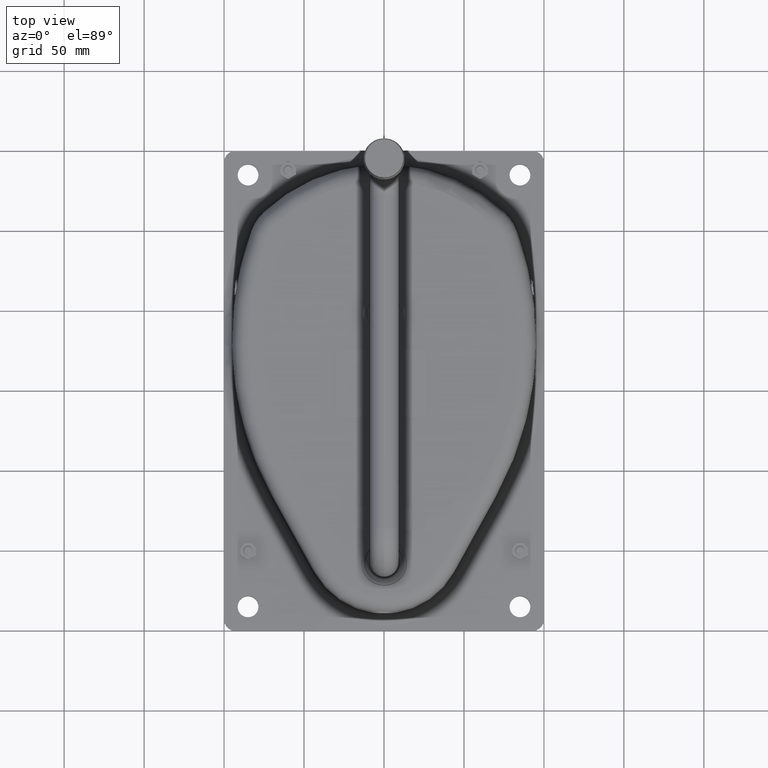
[diagram: clean part render]
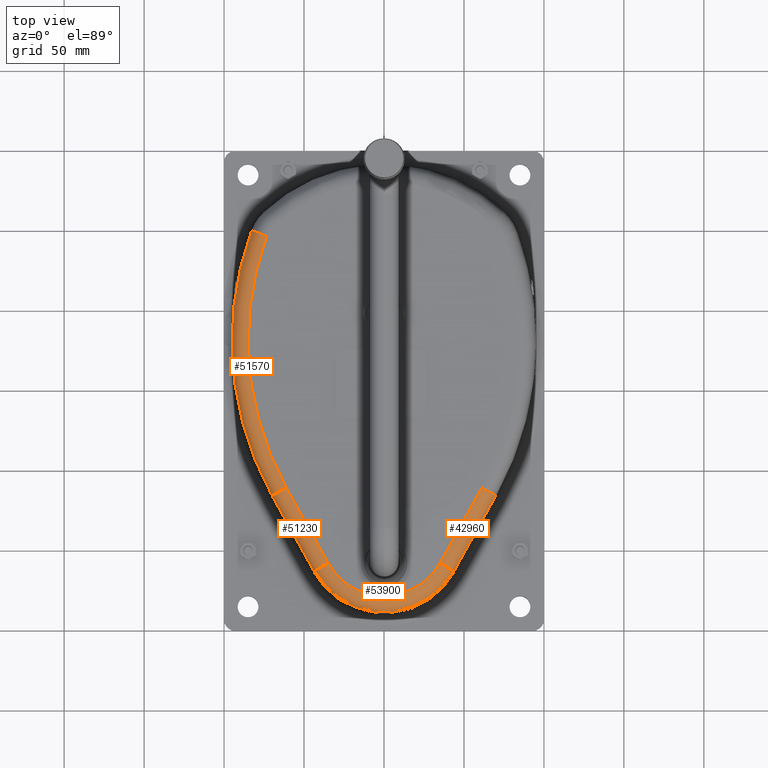
[diagram: same view with one multi-face feature highlighted, each face labeled with its STEP entity id]
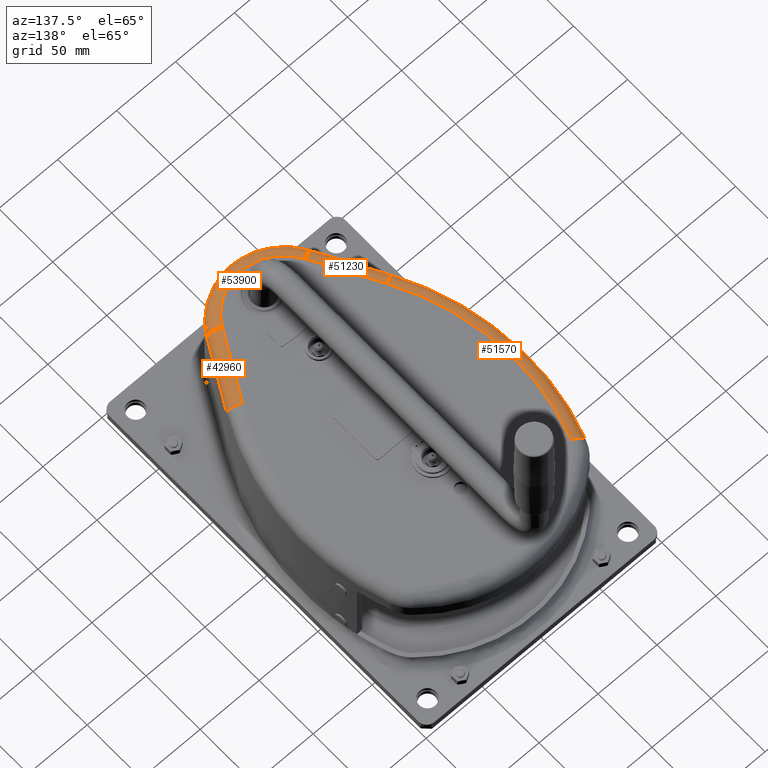
[diagram: same view with one multi-face feature highlighted, each face labeled with its STEP entity id]
A machine part, top view. The highlighted faces form ONE feature: a constant-radius fillet chain: 4 tangent blend faces with common blend radius 10 mm. The faces share edges in the B-rep.
A second angle (auxiliary view) of the same feature is appended — it is thin or edge-on in the first view.
Their STEP definitions:
[1] entity #51230 (Cylinder):
#47050=CARTESIAN_POINT('',(-40.9159415704462,161.969343752201,
-2.8421709430404E-14));
#47060=VERTEX_POINT('',#47050);
#50660=CARTESIAN_POINT('',(-67.946986108562,115.125746204848,
-2.8421709430404E-14));
#50670=VERTEX_POINT('',#50660);
#50700=CARTESIAN_POINT('',(-17.7089792885442,202.185976886639,
-2.8421709430404E-14));
#50710=DIRECTION('',(-0.499804190315523,-0.866138425047085,0.));
#50720=VECTOR('',#50710,1.);
#50730=LINE('',#50700,#50720);
#50740=EDGE_CURVE('',#47060,#50670,#50730,.T.);
#50910=CARTESIAN_POINT('',(-9.04759503807331,197.187934983483,
-2.8421709430404E-14));
#50920=DIRECTION('',(-0.499804190315523,-0.866138425047085,0.));
#50930=DIRECTION('',(0.866138425047085,-0.499804190315523,0.));
#50940=AXIS2_PLACEMENT_3D('',#50910,#50920,#50930);
#50950=CYLINDRICAL_SURFACE('',#50940,10.);
#50960=CARTESIAN_POINT('',(-32.2545573199754,156.971301849046,
-2.8421709430404E-14));
#50970=DIRECTION('',(0.499804190315523,0.866138425047085,0.));
#50980=DIRECTION('',(-0.866138425047085,0.499804190315523,-0.));
#50990=AXIS2_PLACEMENT_3D('',#50960,#50970,#50980);
#51000=CIRCLE('',#50990,10.);
#51010=CARTESIAN_POINT('',(-32.2545573199754,156.971301849046,-10.));
#51020=VERTEX_POINT('',#51010);
#51030=EDGE_CURVE('',#51020,#47060,#51000,.T.);
#51040=ORIENTED_EDGE('',*,*,#51030,.F.);
#51050=ORIENTED_EDGE('',*,*,#50740,.F.);
#51060=CARTESIAN_POINT('',(-59.2856018580911,110.127704301693,
-2.8421709430404E-14));
#51070=DIRECTION('',(0.499804190315522,0.866138425047086,0.));
#51080=DIRECTION('',(-0.866138425047086,0.499804190315522,-0.));
#51090=AXIS2_PLACEMENT_3D('',#51060,#51070,#51080);
#51100=CIRCLE('',#51090,10.);
#51110=CARTESIAN_POINT('',(-59.2856018580911,110.127704301693,-10.));
#51120=VERTEX_POINT('',#51110);
#51130=EDGE_CURVE('',#51120,#50670,#51100,.T.);
#51140=ORIENTED_EDGE('',*,*,#51130,.T.);
#51150=CARTESIAN_POINT('',(-9.04759503807331,197.187934983483,-10.));
#51160=DIRECTION('',(-0.499804190315523,-0.866138425047085,0.));
#51170=VECTOR('',#51160,1.);
#51180=LINE('',#51150,#51170);
#51190=EDGE_CURVE('',#51020,#51120,#51180,.T.);
#51200=ORIENTED_EDGE('',*,*,#51190,.T.);
#51210=EDGE_LOOP('',(#51200,#51140,#51050,#51040));
#51220=FACE_OUTER_BOUND('',#51210,.T.);
#51230=ADVANCED_FACE('',(#51220),#50950,.T.);
[2] entity #51570 (Torus):
#50660=CARTESIAN_POINT('',(-67.946986108562,115.125746204848,
-2.8421709430404E-14));
#50670=VERTEX_POINT('',#50660);
#51060=CARTESIAN_POINT('',(-59.2856018580911,110.127704301693,
-2.8421709430404E-14));
#51070=DIRECTION('',(0.499804190315522,0.866138425047086,0.));
#51080=DIRECTION('',(-0.866138425047086,0.499804190315522,-0.));
#51090=AXIS2_PLACEMENT_3D('',#51060,#51070,#51080);
#51100=CIRCLE('',#51090,10.);
#51110=CARTESIAN_POINT('',(-59.2856018580911,110.127704301693,-10.));
#51120=VERTEX_POINT('',#51110);
#51130=EDGE_CURVE('',#51120,#50670,#51100,.T.);
#51240=CARTESIAN_POINT('',(105.280698900855,15.1649081417436,
-2.8421709430404E-14));
#51250=DIRECTION('',(0.,-0.,-1.));
#51260=DIRECTION('',(0.999847695156391,-0.0174524064372835,0.));
#51270=AXIS2_PLACEMENT_3D('',#51240,#51250,#51260);
#51280=TOROIDAL_SURFACE('',#51270,190.,10.);
#51290=ORIENTED_EDGE('',*,*,#51130,.F.);
#51300=CARTESIAN_POINT('',(105.280698900855,15.1649081417436,
-2.8421709430404E-14));
#51310=DIRECTION('',(0.,-0.,-1.));
#51320=DIRECTION('',(0.999847695156391,-0.0174524064372835,0.));
#51330=AXIS2_PLACEMENT_3D('',#51300,#51310,#51320);
#51340=CIRCLE('',#51330,200.);
#51350=CARTESIAN_POINT('',(-83.705537333103,-50.2889115643866,
-2.8421709430404E-14));
#51360=VERTEX_POINT('',#51350);
#51370=EDGE_CURVE('',#51360,#50670,#51340,.T.);
#51380=ORIENTED_EDGE('',*,*,#51370,.T.);
#51390=CARTESIAN_POINT('',(-74.2562255214051,-47.0162205790801,
-2.8421709430404E-14));
#51400=DIRECTION('',(-0.327269098530651,0.944931181169791,-0.));
#51410=DIRECTION('',(-0.944931181169791,-0.327269098530651,0.));
#51420=AXIS2_PLACEMENT_3D('',#51390,#51400,#51410);
#51430=CIRCLE('',#51420,10.);
#51440=CARTESIAN_POINT('',(-74.2562255214051,-47.0162205790802,-10.));
#51450=VERTEX_POINT('',#51440);
#51460=EDGE_CURVE('',#51450,#51360,#51430,.T.);
#51470=ORIENTED_EDGE('',*,*,#51460,.T.);
#51480=CARTESIAN_POINT('',(105.280698900855,15.1649081417436,-10.));
#51490=DIRECTION('',(0.,-0.,-1.));
#51500=DIRECTION('',(0.999847695156391,-0.0174524064372835,0.));
#51510=AXIS2_PLACEMENT_3D('',#51480,#51490,#51500);
#51520=CIRCLE('',#51510,190.);
#51530=EDGE_CURVE('',#51450,#51120,#51520,.T.);
#51540=ORIENTED_EDGE('',*,*,#51530,.F.);
#51550=EDGE_LOOP('',(#51540,#51470,#51380,#51290));
#51560=FACE_OUTER_BOUND('',#51550,.T.);
#51570=ADVANCED_FACE('',(#51560),#51280,.T.);
[3] entity #53900 (Torus):
#42750=CARTESIAN_POINT('',(46.5436652625398,160.442730636335,
-2.8421709430404E-14));
#42760=VERTEX_POINT('',#42750);
#42790=CARTESIAN_POINT('',(37.7131281464135,155.750011356353,
-2.8421709430404E-14));
#42800=DIRECTION('',(0.4692719279982,-0.883053711612636,0.));
#42810=DIRECTION('',(0.883053711612636,0.4692719279982,0.));
#42820=AXIS2_PLACEMENT_3D('',#42790,#42800,#42810);
#42830=CIRCLE('',#42820,10.);
#42840=CARTESIAN_POINT('',(37.7131281464134,155.750011356353,-10.));
#42850=VERTEX_POINT('',#42840);
#42860=EDGE_CURVE('',#42850,#42760,#42830,.T.);
#47050=CARTESIAN_POINT('',(-40.9159415704462,161.969343752201,
-2.8421709430404E-14));
#47060=VERTEX_POINT('',#47050);
#47090=CARTESIAN_POINT('',(2.39097968190802,136.979134236425,
-2.8421709430404E-14));
#47100=DIRECTION('',(0.,-0.,-1.));
#47110=DIRECTION('',(0.999847695156391,-0.0174524064372835,0.));
#47120=AXIS2_PLACEMENT_3D('',#47090,#47100,#47110);
#47130=CIRCLE('',#47120,50.);
#47140=CARTESIAN_POINT('',(-2.9872800438964,186.689035889132,0.));
#47150=VERTEX_POINT('',#47140);
#47160=EDGE_CURVE('',#47060,#47150,#47130,.T.);
#47180=CARTESIAN_POINT('',(3.43812406814503,196.969995945809,
4.99999999999997));
#47190=DIRECTION('',(0.0174524064372835,0.999847695156391,0.));
#47200=DIRECTION('',(0.999847695156391,-0.0174524064372835,0.));
#47210=AXIS2_PLACEMENT_3D('',#47180,#47190,#47200);
#47220=CYLINDRICAL_SURFACE('',#47210,8.);
#50430=CARTESIAN_POINT('',(9.50081366601347,186.471055402596,
-7.105427357601E-14));
#50440=VERTEX_POINT('',#50430);
#50470=EDGE_CURVE('',#50440,#42760,#47130,.T.);
#50960=CARTESIAN_POINT('',(-32.2545573199754,156.971301849046,
-2.8421709430404E-14));
#50970=DIRECTION('',(0.499804190315523,0.866138425047085,0.));
#50980=DIRECTION('',(-0.866138425047085,0.499804190315523,-0.));
#50990=AXIS2_PLACEMENT_3D('',#50960,#50970,#50980);
#51000=CIRCLE('',#50990,10.);
#51010=CARTESIAN_POINT('',(-32.2545573199754,156.971301849046,-10.));
#51020=VERTEX_POINT('',#51010);
#51030=EDGE_CURVE('',#51020,#47060,#51000,.T.);
#52260=CARTESIAN_POINT('',(2.39097968190802,136.979134236425,
-2.8421709430404E-14));
#52270=DIRECTION('',(0.,-0.,-1.));
#52280=DIRECTION('',(0.999847695156391,-0.0174524064372838,0.));
#52290=AXIS2_PLACEMENT_3D('',#52260,#52270,#52280);
#52300=TOROIDAL_SURFACE('',#52290,40.,10.);
#52310=ORIENTED_EDGE('',*,*,#42860,.F.);
#52320=ORIENTED_EDGE('',*,*,#50470,.T.);
#52330=CARTESIAN_POINT('',(9.50081366601326,186.471055402618,
2.68595916200358E-12));
#52340=CARTESIAN_POINT('',(9.31527125875053,186.497709767241,
-0.232288110040329));
#52350=CARTESIAN_POINT('',(9.11639467594897,186.517036368844,
-0.454500245974532));
#52360=CARTESIAN_POINT('',(8.90504556973544,186.530633682329,
-0.665414668867476));
#52370=CARTESIAN_POINT('',(8.85223369043336,186.534031376748,
-0.718117929574125));
#52380=CARTESIAN_POINT('',(8.7986704925271,186.537069587956,
-0.770088186339204));
#52390=CARTESIAN_POINT('',(8.74439269806478,186.539773747498,
-0.82129034419344));
#52400=CARTESIAN_POINT('',(8.6901148918004,186.542477907627,
-0.872492513180976));
#52410=CARTESIAN_POINT('',(8.6351225965098,186.544848025036,
-0.922926486848421));
#52420=CARTESIAN_POINT('',(8.57945440851897,186.546910346571,
-0.972559791437436));
#52430=CARTESIAN_POINT('',(8.46815189299168,186.551033735222,
-1.07179621090917));
#52440=CARTESIAN_POINT('',(8.35405707465413,186.553931460233,
-1.16791849399033));
#52450=CARTESIAN_POINT('',(8.2371545426476,186.555814242713,
-1.26091695950417));
#52460=CARTESIAN_POINT('',(8.12027528994461,186.557696650265,
-1.35389690583394));
#52470=CARTESIAN_POINT('',(8.00068774760171,186.558561391436,
-1.4436671925601));
#52480=CARTESIAN_POINT('',(7.87868186168979,186.558617040583,
-1.53000392371791));
#52490=CARTESIAN_POINT('',(7.75667595460816,186.558672689739,
-1.61634066985633));
#52500=CARTESIAN_POINT('',(7.63225462580299,186.557919651364,
-1.69924181682729));
#52510=CARTESIAN_POINT('',(7.50573147707539,186.556568627291,
-1.7785187675577));
#52520=CARTESIAN_POINT('',(7.44247001456257,186.555893116448,
-1.81815717283925));
#52530=CARTESIAN_POINT('',(7.37868369421682,186.555068106401,
-1.85688993599935));
#52540=CARTESIAN_POINT('',(7.31441330033621,186.554119633326,
-1.89469711068627));
#52550=CARTESIAN_POINT('',(7.25014821918994,186.553171238654,
-1.93250116014768));
#52560=CARTESIAN_POINT('',(7.18530336906222,186.552097967863,
-1.96943616363618));
#52570=CARTESIAN_POINT('',(7.11991200869281,186.550924424903,
-2.00547845354763));
#52580=CARTESIAN_POINT('',(6.98912939788218,186.548577340957,
-2.0775629727805));
#52590=CARTESIAN_POINT('',(6.85616219208218,186.545829655434,
-2.1460731006512));
#52600=CARTESIAN_POINT('',(6.72130757807275,186.542875124311,
-2.21083341248851));
#52610=CARTESIAN_POINT('',(6.58645313296232,186.539920596889,
-2.27559364321661));
#52620=CARTESIAN_POINT('',(6.4497140368013,186.536759692943,
-2.33660264329383));
#52630=CARTESIAN_POINT('',(6.31140901736116,186.533576623467,
-2.39371682775522));
#52640=CARTESIAN_POINT('',(6.17310390484854,186.530393551848,
-2.45083105065164));
#52650=CARTESIAN_POINT('',(6.03323580875509,186.527188777341,
-2.50404927598617));
#52660=CARTESIAN_POINT('',(5.89213589528688,186.524130688413,
-2.55326429917497));
#52670=CARTESIAN_POINT('',(5.75101870514418,186.521072225045,
-2.60248534839111));
#52680=CARTESIAN_POINT('',(5.60874697836468,186.518162268904,
-2.64767970373908));
#52690=CARTESIAN_POINT('',(5.46544132722984,186.515543701851,
-2.68884058531693));
#52700=CARTESIAN_POINT('',(5.39375860993525,186.514233872125,
-2.70942961173965));
#52710=CARTESIAN_POINT('',(5.32176010488007,186.512995593662,
-2.72902532178064));
#52720=CARTESIAN_POINT('',(5.24948750712257,186.511845554314,
-2.7476144284707));
#52730=CARTESIAN_POINT('',(5.17721491812399,186.510695515106,
-2.7662035329079));
#52740=CARTESIAN_POINT('',(5.10466833863981,186.509633727489,
-2.78378600540758));
#52750=CARTESIAN_POINT('',(5.03189034139669,186.50867531306,
-2.80035083918201));
#52760=CARTESIAN_POINT('',(4.95911234305919,186.507716898616,
-2.81691567320553));
#52770=CARTESIAN_POINT('',(4.88610303290007,186.506861868309,
-2.83246284418954));
#52780=CARTESIAN_POINT('',(4.81290552185006,186.506123619003,
-2.84698372840804));
#52790=CARTESIAN_POINT('',(4.73970799933494,186.505385369581,
-2.86150461490099));
#52800=CARTESIAN_POINT('',(4.66632238478075,186.504763910227,
-2.87499919501703));
#52810=CARTESIAN_POINT('',(4.59279196472706,186.504270777409,
-2.88746128932925));
#52820=CARTESIAN_POINT('',(4.51927067824927,186.503777705845,
-2.89992183566331));
#52830=CARTESIAN_POINT('',(4.44556865001307,186.5034126524,
-2.91135653328914));
#52840=CARTESIAN_POINT('',(4.37169909917992,186.503185606531,
-2.92176193461657));
#52850=CARTESIAN_POINT('',(4.29783204530242,186.502958568338,
-2.93216698421822));
#52860=CARTESIAN_POINT('',(4.22380827242451,186.502869605572,
-2.94154099564171));
#52870=CARTESIAN_POINT('',(4.1496718841049,186.502926906827,
-2.94987788524321));
#52880=CARTESIAN_POINT('',(4.00137840796976,186.503041525336,
-2.96655399217511));
#52890=CARTESIAN_POINT('',(3.85272843597479,186.503742694648,
-2.97907267078765));
#52900=CARTESIAN_POINT('',(3.7037938183842,186.505073150665,
-2.98743114912054));
#52910=CARTESIAN_POINT('',(3.62932409368158,186.505738400255,
-2.99161052387204));
#52920=CARTESIAN_POINT('',(3.55478774621978,186.506560600406,
-2.99474882753865));
#52930=CARTESIAN_POINT('',(3.48022946519318,186.507542045456,
-2.99684391584935));
#52940=CARTESIAN_POINT('',(3.4056711786367,186.508523490579,
-2.99893900431545));
#52950=CARTESIAN_POINT('',(3.33109108517746,186.509664180051,
-2.99999087475374));
#52960=CARTESIAN_POINT('',(3.25653378490807,186.51096419526,
-2.99999994087249));
#52970=CARTESIAN_POINT('',(3.18197607122861,186.512264217678,
-3.00000900704151));
#52980=CARTESIAN_POINT('',(3.10739987643882,186.513724287311,
-2.99897526229548));
#52990=CARTESIAN_POINT('',(3.03284977888694,186.515342796526,
-2.99689819777198));
#53000=CARTESIAN_POINT('',(2.95829968623883,186.516961305635,
-2.9948211333851));
#53010=CARTESIAN_POINT('',(2.88377581144797,186.518738250643,
-2.99170075165683));
#53020=CARTESIAN_POINT('',(2.80932274981643,186.520669808409,
-2.98753910200382));
#53030=CARTESIAN_POINT('',(2.7348682924653,186.522601402386,
-2.98337737433527));
#53040=CARTESIAN_POINT('',(2.66049074384011,186.524687430063,
-2.97817484083402));
#53050=CARTESIAN_POINT('',(2.58621736615243,186.526922401042,
-2.9719346909748));
#53060=CARTESIAN_POINT('',(2.51193614943767,186.529157607906,
-2.96569388251212));
#53070=CARTESIAN_POINT('',(2.43772249601032,186.531542913879,
-2.95841200500862));
#53080=CARTESIAN_POINT('',(2.36362040010367,186.53407076675,
-2.95009212966654));
#53090=CARTESIAN_POINT('',(2.28951831150336,186.536598619373,
-2.9417722551448));
#53100=CARTESIAN_POINT('',(2.21552789676956,186.539269009977,
-2.93241439465117));
#53110=CARTESIAN_POINT('',(2.14169299952811,186.542072292217,
-2.92202413704449));
#53120=CARTESIAN_POINT('',(2.06785809859299,186.544875574598,
-2.91163387891801));
#53130=CARTESIAN_POINT('',(1.99417882909787,186.547811737351,
-2.90021124085792));
#53140=CARTESIAN_POINT('',(1.92069850167625,186.550869143052,
-2.88776428206445));
#53150=CARTESIAN_POINT('',(1.77377283013471,186.556982498852,
-2.86287629035905));
#53160=CARTESIAN_POINT('',(1.62752761387812,186.563586817243,
-2.8338747470478));
#53170=CARTESIAN_POINT('',(1.48211352629539,186.570579296601,
-2.80077888727825));
#53180=CARTESIAN_POINT('',(1.40941427459137,186.574075161584,
-2.78423273085184));
#53190=CARTESIAN_POINT('',(1.33693964913272,186.577666859314,
-2.76666674773954));
#53200=CARTESIAN_POINT('',(1.26473179215501,186.5813378784,
-2.74809107502055));
#53210=CARTESIAN_POINT('',(1.19252393324754,186.585008897585,
-2.72951540180512));
#53220=CARTESIAN_POINT('',(1.12058294511888,186.588759222447,
-2.70993006623971));
#53230=CARTESIAN_POINT('',(1.04895022818693,186.592570770057,
-2.68934753405741));
#53240=CARTESIAN_POINT('',(0.977317499817563,186.596382318276,
-2.66876499858875));
#53250=CARTESIAN_POINT('',(0.905993140960411,186.600255072455,
-2.64718529775198));
#53260=CARTESIAN_POINT('',(0.835017491485974,186.604169560582,
-2.62462310642372));
#53270=CARTESIAN_POINT('',(0.764058412318695,186.608083134814,
-2.6020661825702));
#53280=CARTESIAN_POINT('',(0.693366900808715,186.612042885185,
-2.57850183196832));
#53290=CARTESIAN_POINT('',(0.622951590177022,186.61603021265,
-2.55392760356611));
#53300=CARTESIAN_POINT('',(0.482126155369443,186.624004573893,
-2.50478095678212));
#53310=CARTESIAN_POINT('',(0.342452286275175,186.632087878338,
-2.45160758320908));
#53320=CARTESIAN_POINT('',(0.204258151794336,186.640100560999,
-2.39449999352602));
#53330=CARTESIAN_POINT('',(0.0660643095163911,186.648113226717,
-2.3373925245934));
#53340=CARTESIAN_POINT('',(-0.0706468092268165,186.656054713987,
-2.27635195368818));
#53350=CARTESIAN_POINT('',(-0.205554344089464,186.663728507466,
-2.21150952948499));
#53360=CARTESIAN_POINT('',(-0.340461862520346,186.67140230001,
-2.14666711317962));
#53370=CARTESIAN_POINT('',(-0.473562945837049,186.678807823824,
-2.07802421961867));
#53380=CARTESIAN_POINT('',(-0.60455381870717,186.68573819406,
-2.00574749634002));
#53390=CARTESIAN_POINT('',(-0.73554492742913,186.692668576774,
-1.93347064292559));
#53400=CARTESIAN_POINT('',(-0.86442314350068,186.699123261164,
-1.85756157296712));
#53410=CARTESIAN_POINT('',(-0.990910184304839,186.704891611508,
-1.77821684421418));
#53420=CARTESIAN_POINT('',(-1.05415366325124,186.707775784789,
-1.73854450584266));
#53430=CARTESIAN_POINT('',(-1.11679955295195,186.710488345223,
-1.69801382511894));
#53440=CARTESIAN_POINT('',(-1.17881587920226,186.713003093358,
-1.65665168143002));
#53450=CARTESIAN_POINT('',(-1.24081710469915,186.715517229161,
-1.615299609275));
#53460=CARTESIAN_POINT('',(-1.30226903483811,186.717836959235,
-1.57306343818082));
#53470=CARTESIAN_POINT('',(-1.36315734808783,186.719935250347,
-1.52994953894632));
#53480=CARTESIAN_POINT('',(-1.48493020241507,186.724131702577,
-1.44372441148335));
#53490=CARTESIAN_POINT('',(-1.604410685225,186.727440668605,
-1.35401078062737));
#53500=CARTESIAN_POINT('',(-1.72129943534889,186.729639523221,
-1.26102295054939));
#53510=CARTESIAN_POINT('',(-1.77974361247661,186.730738946806,
-1.21452919297186));
#53520=CARTESIAN_POINT('',(-1.83753987210677,186.731560897666,
-1.16721775097035));
#53530=CARTESIAN_POINT('',(-1.89465306232068,186.73207818375,
-1.11911892272792));
#53540=CARTESIAN_POINT('',(-1.95176626224366,186.732595469922,
-1.07102008630884));
#53550=CARTESIAN_POINT('',(-2.00819630016601,186.732808079062,
-1.02213394509384));
#53560=CARTESIAN_POINT('',(-2.06391006561612,186.732689489855,
-0.972492689421361));
#53570=CARTESIAN_POINT('',(-2.11963055788907,186.732570886329,
-0.922845440114631));
#53580=CARTESIAN_POINT('',(-2.17460607258475,186.732121401593,
-0.872469718792934));
#53590=CARTESIAN_POINT('',(-2.22888753002727,186.731314168777,
-0.821322476843958));
#53600=CARTESIAN_POINT('',(-2.28317423865299,186.73050685787,
-0.770170286915498));
#53610=CARTESIAN_POINT('',(-2.33677523387174,186.729341236896,
-0.718236941194088));
#53620=CARTESIAN_POINT('',(-2.38965306534411,186.727790051581,
-0.66555669586335));
#53630=CARTESIAN_POINT('',(-2.44253088288537,186.726238866675,
-0.612876464411667));
#53640=CARTESIAN_POINT('',(-2.49468542597574,186.724302105838,
-0.559449437972141));
#53650=CARTESIAN_POINT('',(-2.54608118474061,186.721953548652,
-0.505312586065819));
#53660=CARTESIAN_POINT('',(-2.59747693999993,186.719604991625,
-0.451175737852001));
#53670=CARTESIAN_POINT('',(-2.64811380161896,186.716844629763,
-0.396329178064453));
#53680=CARTESIAN_POINT('',(-2.69795859142559,186.713647477351,
-0.3408122491666));
#53690=CARTESIAN_POINT('',(-2.74780338792646,186.71045032451,
-0.285295312812729));
#53700=CARTESIAN_POINT('',(-2.79685600591469,186.706816376347,
-0.229108129864677));
#53710=CARTESIAN_POINT('',(-2.84508595411315,186.702722051011,
-0.172292012430058));
#53720=CARTESIAN_POINT('',(-2.89331591907519,186.698627724251,
-0.115475875247528));
#53730=CARTESIAN_POINT('',(-2.94072311155416,186.694073019882,
-0.0580309337724281));
#53740=CARTESIAN_POINT('',(-2.98728004389638,186.689035889132,
-2.92022670197013E-14));
#53750=B_SPLINE_CURVE_WITH_KNOTS('',3,(#52330,#52340,#52350,#52360,
#52370,#52380,#52390,#52400,#52410,#52420,#52430,#52440,#52450,#52460,
#52470,#52480,#52490,#52500,#52510,#52520,#52530,#52540,#52550,#52560,
#52570,#52580,#52590,#52600,#52610,#52620,#52630,#52640,#52650,#52660,
#52670,#52680,#52690,#52700,#52710,#52720,#52730,#52740,#52750,#52760,
#52770,#52780,#52790,#52800,#52810,#52820,#52830,#52840,#52850,#52860,
#52870,#52880,#52890,#52900,#52910,#52920,#52930,#52940,#52950,#52960,
#52970,#52980,#52990,#53000,#53010,#53020,#53030,#53040,#53050,#53060,
#53070,#53080,#53090,#53100,#53110,#53120,#53130,#53140,#53150,#53160,
#53170,#53180,#53190,#53200,#53210,#53220,#53230,#53240,#53250,#53260,
#53270,#53280,#53290,#53300,#53310,#53320,#53330,#53340,#53350,#53360,
#53370,#53380,#53390,#53400,#53410,#53420,#53430,#53440,#53450,#53460,
#53470,#53480,#53490,#53500,#53510,#53520,#53530,#53540,#53550,#53560,
#53570,#53580,#53590,#53600,#53610,#53620,#53630,#53640,#53650,#53660,
#53670,#53680,#53690,#53700,#53710,#53720,#53730,#53740),.UNSPECIFIED.,
.F.,.F.,(4,3,3,3,3,3,3,3,3,3,3,3,3,3,3,3,3,3,3,3,3,3,3,3,3,3,3,3,3,3,3,3
,3,3,3,3,3,3,3,3,3,3,3,3,3,3,3,4),(0.,0.89567604570415,1.1197157176852,
1.3436389611871,1.79136068724672,2.23966152707411,2.68789136626241,
2.91174260940627,3.13561037442671,3.58413445685134,4.03313609635224,
4.48189798432399,4.92975429814511,5.15360105888409,5.37752738291209,
5.60144431046224,5.82526376855807,6.04901156884601,6.27281948014755,
6.72034086983031,6.94412437018759,7.16787594801154,7.39163176887157,
7.61542551875891,7.83917077083229,8.06295847284421,8.28680425320833,
8.51061892082181,8.95823988913308,9.18218154354323,9.406105522488,
9.62992301240821,9.85378399966425,10.3025081713004,10.7520002608768,
11.201529354622,11.6503744495908,11.874329348942,12.0981298136,
12.5461662373609,12.7702146590457,12.9941591031703,13.2179346198308,
13.4418198753792,13.6658415516366,13.8898948297087,14.113878580576,
14.3376974297084),.UNSPECIFIED.);
#53760=SURFACE_CURVE('',#53750,(#52300,#47220),.CURVE_3D.);
#53770=EDGE_CURVE('',#50440,#47150,#53760,.T.);
#53780=ORIENTED_EDGE('',*,*,#53770,.F.);
#53790=ORIENTED_EDGE('',*,*,#47160,.T.);
#53800=ORIENTED_EDGE('',*,*,#51030,.T.);
#53810=CARTESIAN_POINT('',(2.39097968190802,136.979134236425,-10.));
#53820=DIRECTION('',(0.,-0.,-1.));
#53830=DIRECTION('',(0.999847695156391,-0.0174524064372835,0.));
#53840=AXIS2_PLACEMENT_3D('',#53810,#53820,#53830);
#53850=CIRCLE('',#53840,40.);
#53860=EDGE_CURVE('',#51020,#42850,#53850,.T.);
#53870=ORIENTED_EDGE('',*,*,#53860,.F.);
#53880=EDGE_LOOP('',(#53870,#53800,#53790,#53780,#52320,#52310));
#53890=FACE_OUTER_BOUND('',#53880,.T.);
#53900=ADVANCED_FACE('',(#53890),#52300,.T.);
[4] entity #42960 (Cylinder):
#42420=CARTESIAN_POINT('',(71.92342524054,112.684299093213,
-2.8421709430404E-14));
#42430=VERTEX_POINT('',#42420);
#42460=CARTESIAN_POINT('',(63.0928881244137,107.991579813231,
-2.8421709430404E-14));
#42470=DIRECTION('',(0.4692719279982,-0.883053711612636,0.));
#42480=DIRECTION('',(0.883053711612636,0.4692719279982,0.));
#42490=AXIS2_PLACEMENT_3D('',#42460,#42470,#42480);
#42500=CIRCLE('',#42490,10.);
#42510=CARTESIAN_POINT('',(63.0928881244137,107.991579813231,-10.));
#42520=VERTEX_POINT('',#42510);
#42530=EDGE_CURVE('',#42520,#42430,#42500,.T.);
#42650=CARTESIAN_POINT('',(15.9238431743633,196.752056908134,
-2.8421709430404E-14));
#42660=DIRECTION('',(-0.4692719279982,0.883053711612636,-0.));
#42670=DIRECTION('',(-0.883053711612636,-0.4692719279982,0.));
#42680=AXIS2_PLACEMENT_3D('',#42650,#42660,#42670);
#42690=CYLINDRICAL_SURFACE('',#42680,10.);
#42700=ORIENTED_EDGE('',*,*,#42530,.F.);
#42710=CARTESIAN_POINT('',(24.7543802904897,201.444776188116,
-2.8421709430404E-14));
#42720=DIRECTION('',(-0.4692719279982,0.883053711612636,-0.));
#42730=VECTOR('',#42720,1.);
#42740=LINE('',#42710,#42730);
#42750=CARTESIAN_POINT('',(46.5436652625398,160.442730636335,
-2.8421709430404E-14));
#42760=VERTEX_POINT('',#42750);
#42770=EDGE_CURVE('',#42430,#42760,#42740,.T.);
#42780=ORIENTED_EDGE('',*,*,#42770,.F.);
#42790=CARTESIAN_POINT('',(37.7131281464135,155.750011356353,
-2.8421709430404E-14));
#42800=DIRECTION('',(0.4692719279982,-0.883053711612636,0.));
#42810=DIRECTION('',(0.883053711612636,0.4692719279982,0.));
#42820=AXIS2_PLACEMENT_3D('',#42790,#42800,#42810);
#42830=CIRCLE('',#42820,10.);
#42840=CARTESIAN_POINT('',(37.7131281464134,155.750011356353,-10.));
#42850=VERTEX_POINT('',#42840);
#42860=EDGE_CURVE('',#42850,#42760,#42830,.T.);
#42870=ORIENTED_EDGE('',*,*,#42860,.T.);
#42880=CARTESIAN_POINT('',(15.9238431743633,196.752056908134,-10.));
#42890=DIRECTION('',(-0.4692719279982,0.883053711612636,-0.));
#42900=VECTOR('',#42890,1.);
#42910=LINE('',#42880,#42900);
#42920=EDGE_CURVE('',#42520,#42850,#42910,.T.);
#42930=ORIENTED_EDGE('',*,*,#42920,.T.);
#42940=EDGE_LOOP('',(#42930,#42870,#42780,#42700));
#42950=FACE_OUTER_BOUND('',#42940,.T.);
#42960=ADVANCED_FACE('',(#42950),#42690,.T.);